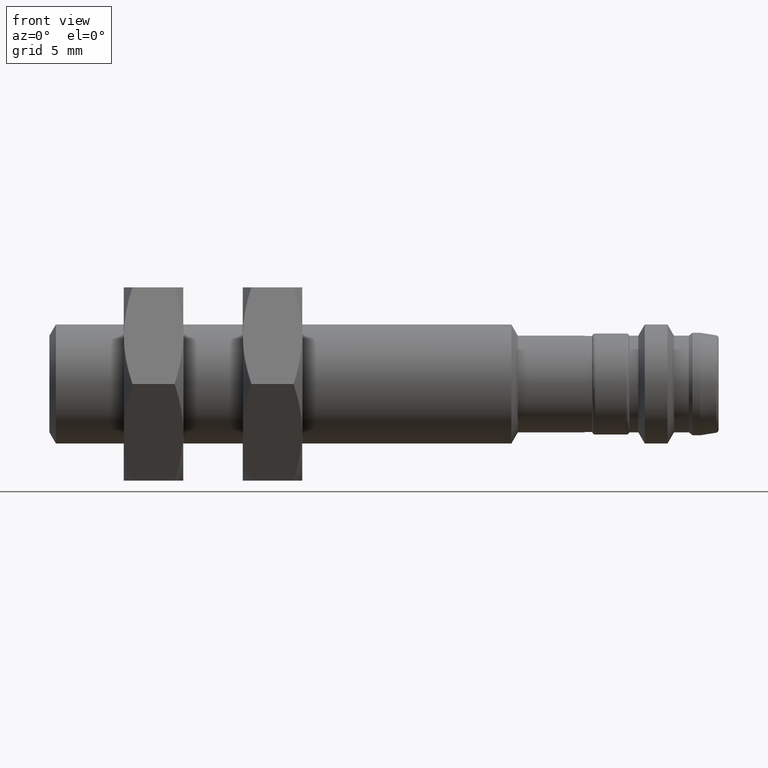
[diagram: clean part render]
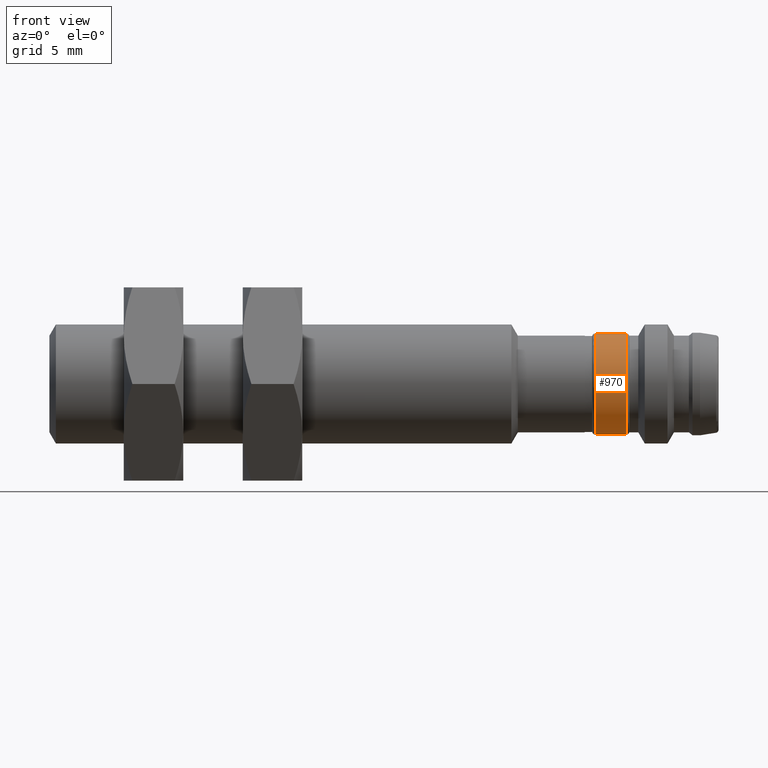
[diagram: same view with one face highlighted and labeled with its STEP entity id]
A machine part, front view. The second image highlights one B-rep face of the part: STEP entity #970.
In plain terms, the highlighted cylindrical surface (bore or boss wall) has radius 3.4 mm, axis along (-1, 0, 0).
Its self-contained STEP definition (entity closure, byte-faithful):
#65 = DIRECTION ( 'NONE',  ( -1.000000000000000000, -0.0000000000000000000, -0.0000000000000000000 ) ) ;
#89 = CYLINDRICAL_SURFACE ( 'NONE', #1327, 0.1338582677165354173 ) ;
#184 = CIRCLE ( 'NONE', #1347, 0.1338582677165354451 ) ;
#345 = VERTEX_POINT ( 'NONE', #1148 ) ;
#410 = DIRECTION ( 'NONE',  ( 0.0000000000000000000, 0.0000000000000000000, 1.000000000000000000 ) ) ;
#418 = FACE_OUTER_BOUND ( 'NONE', #1085, .T. ) ;
#586 = EDGE_CURVE ( 'NONE', #345, #345, #1794, .T. ) ;
#689 = DIRECTION ( 'NONE',  ( 0.0000000000000000000, 0.0000000000000000000, -1.000000000000000000 ) ) ;
#700 = CARTESIAN_POINT ( 'NONE',  ( 1.444881889763779625, 0.0000000000000000000, 0.0000000000000000000 ) ) ;
#712 = CARTESIAN_POINT ( 'NONE',  ( 1.771653543307086576, 0.0000000000000000000, 0.0000000000000000000 ) ) ;
#875 = ORIENTED_EDGE ( 'NONE', *, *, #1313, .F. ) ;
#910 = DIRECTION ( 'NONE',  ( -1.000000000000000000, 0.0000000000000000000, 0.0000000000000000000 ) ) ;
#970 = ADVANCED_FACE ( 'NONE', ( #1840, #418 ), #89, .T. ) ;
#993 = CARTESIAN_POINT ( 'NONE',  ( 1.444881889763779625, 0.0000000000000000000, -0.1338582677165354451 ) ) ;
#1018 = EDGE_LOOP ( 'NONE', ( #875 ) ) ;
#1085 = EDGE_LOOP ( 'NONE', ( #1310 ) ) ;
#1097 = AXIS2_PLACEMENT_3D ( 'NONE', #1864, #910, #2013 ) ;
#1148 = CARTESIAN_POINT ( 'NONE',  ( 1.527559055118110409, 0.0000000000000000000, 0.1338582677165354173 ) ) ;
#1310 = ORIENTED_EDGE ( 'NONE', *, *, #586, .T. ) ;
#1313 = EDGE_CURVE ( 'NONE', #1793, #1793, #184, .T. ) ;
#1327 = AXIS2_PLACEMENT_3D ( 'NONE', #712, #1697, #410 ) ;
#1347 = AXIS2_PLACEMENT_3D ( 'NONE', #700, #65, #689 ) ;
#1697 = DIRECTION ( 'NONE',  ( -1.000000000000000000, 0.0000000000000000000, 0.0000000000000000000 ) ) ;
#1793 = VERTEX_POINT ( 'NONE', #993 ) ;
#1794 = CIRCLE ( 'NONE', #1097, 0.1338582677165354173 ) ;
#1840 = FACE_OUTER_BOUND ( 'NONE', #1018, .T. ) ;
#1864 = CARTESIAN_POINT ( 'NONE',  ( 1.527559055118110409, 0.0000000000000000000, 0.0000000000000000000 ) ) ;
#2013 = DIRECTION ( 'NONE',  ( 0.0000000000000000000, 0.0000000000000000000, 1.000000000000000000 ) ) ;